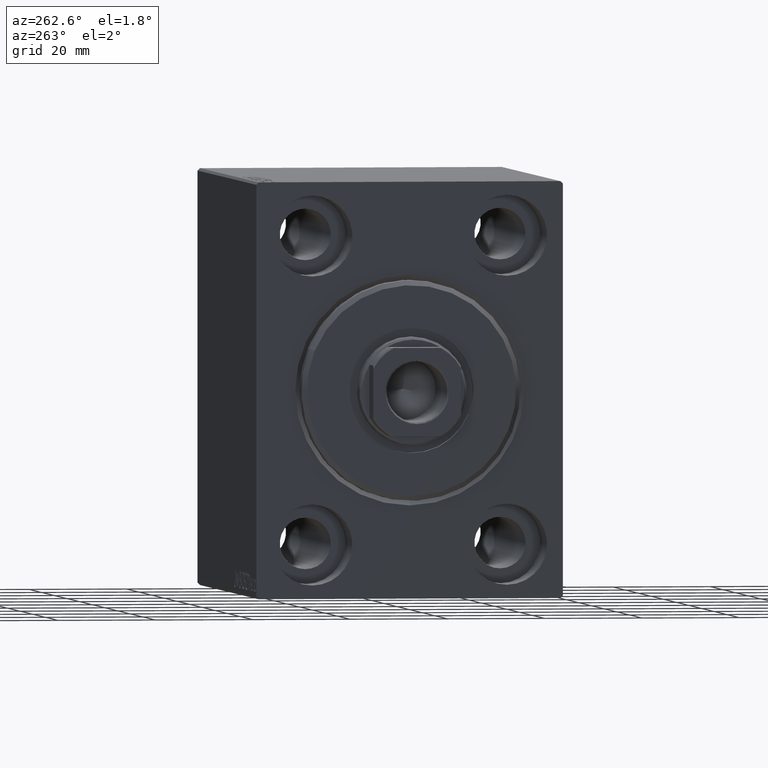
[diagram: clean part render]
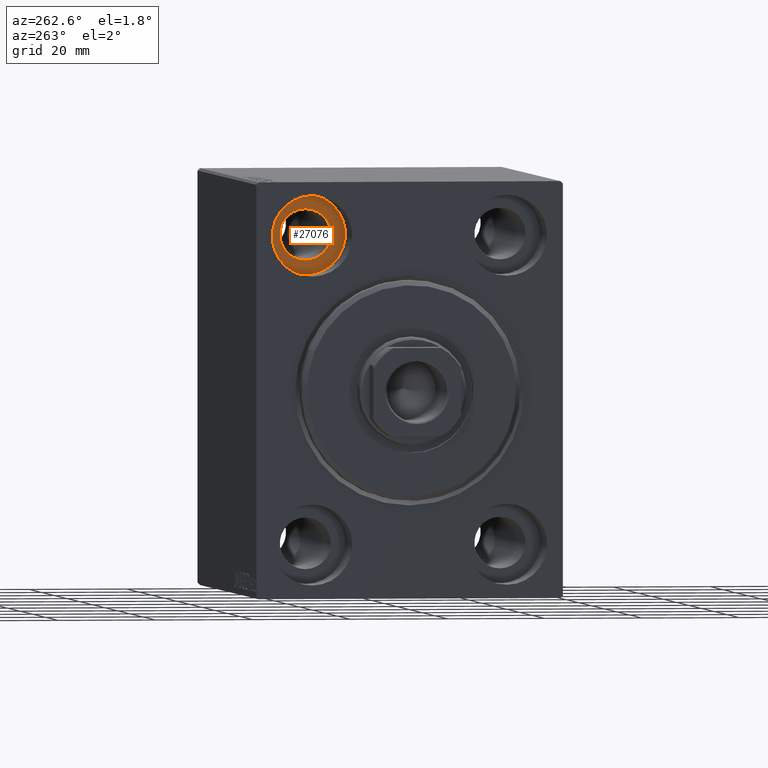
[diagram: same view with one face highlighted and labeled with its STEP entity id]
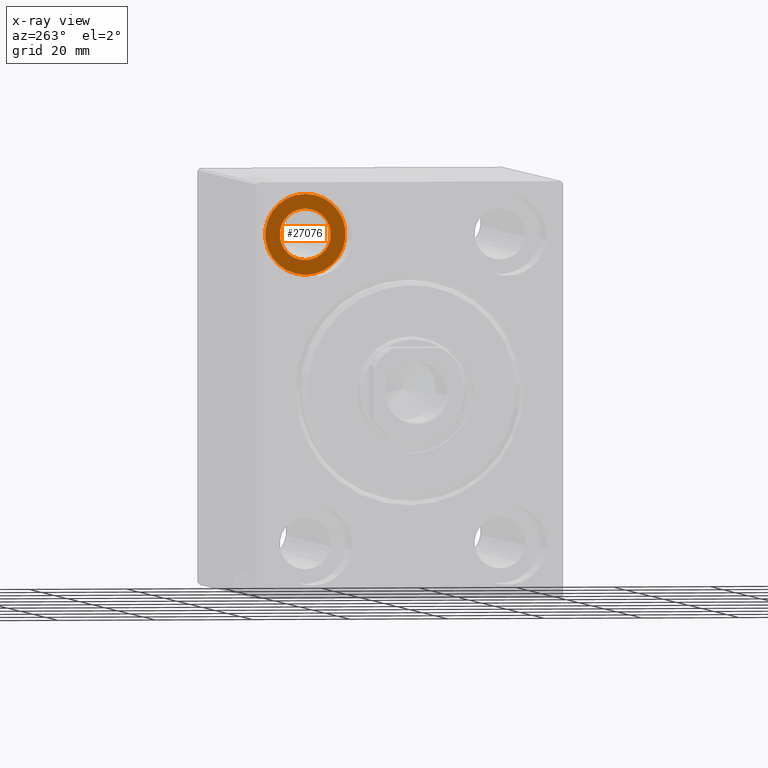
[diagram: x-ray of the same camera — body ghosted, the highlighted face saturated]
A machine part, auxiliary view. The second image highlights one B-rep face of the part: STEP entity #27076.
The next image is the same camera in x-ray: the body ghosted, the highlighted face saturated — about 0% of this face is hidden behind the body in this view.
In plain terms, the highlighted planar face has unit normal (-1, 0, 0).
Its self-contained STEP definition (entity closure, byte-faithful):
#381 = VERTEX_POINT ( 'NONE', #25216 ) ;
#860 = CIRCLE ( 'NONE', #34021, 5.249999999999997335 ) ;
#892 = VERTEX_POINT ( 'NONE', #18255 ) ;
#1297 = VERTEX_POINT ( 'NONE', #40338 ) ;
#2776 = CARTESIAN_POINT ( 'NONE',  ( 11.00000000000000000, 20.00000000000000355, 31.50000000000000000 ) ) ;
#3083 = ORIENTED_EDGE ( 'NONE', *, *, #9266, .F. ) ;
#4389 = PLANE ( 'NONE',  #30589 ) ;
#5520 = EDGE_CURVE ( 'NONE', #381, #1297, #43139, .T. ) ;
#7004 = DIRECTION ( 'NONE',  ( -1.000000000000000000, 0.000000000000000000, 0.000000000000000000 ) ) ;
#7572 = EDGE_CURVE ( 'NONE', #11848, #892, #10022, .T. ) ;
#8796 = DIRECTION ( 'NONE',  ( 0.000000000000000000, 0.000000000000000000, 1.000000000000000000 ) ) ;
#8975 = EDGE_LOOP ( 'NONE', ( #3083, #22003 ) ) ;
#9266 = EDGE_CURVE ( 'NONE', #892, #11848, #860, .T. ) ;
#9656 = CARTESIAN_POINT ( 'NONE',  ( 10.99999999999999645, 20.00000000000000355, 31.50000000000000000 ) ) ;
#9964 = AXIS2_PLACEMENT_3D ( 'NONE', #2776, #19771, #39494 ) ;
#10022 = CIRCLE ( 'NONE', #42505, 5.249999999999997335 ) ;
#11848 = VERTEX_POINT ( 'NONE', #41349 ) ;
#11915 = FACE_BOUND ( 'NONE', #8975, .T. ) ;
#12182 = DIRECTION ( 'NONE',  ( -1.000000000000000000, 0.000000000000000000, 0.000000000000000000 ) ) ;
#16728 = DIRECTION ( 'NONE',  ( 0.000000000000000000, 0.000000000000000000, 1.000000000000000000 ) ) ;
#18255 = CARTESIAN_POINT ( 'NONE',  ( 10.99999999999999645, 20.00000000000000355, 36.75000000000000000 ) ) ;
#19771 = DIRECTION ( 'NONE',  ( -1.000000000000000000, 0.000000000000000000, 0.000000000000000000 ) ) ;
#22003 = ORIENTED_EDGE ( 'NONE', *, *, #7572, .F. ) ;
#22914 = DIRECTION ( 'NONE',  ( -1.000000000000000000, 0.000000000000000000, 0.000000000000000000 ) ) ;
#24242 = CARTESIAN_POINT ( 'NONE',  ( 11.00000000000000000, 20.00000000000000355, 31.50000000000000000 ) ) ;
#24785 = CARTESIAN_POINT ( 'NONE',  ( 10.99999999999999645, 20.00000000000000355, 31.50000000000000000 ) ) ;
#25216 = CARTESIAN_POINT ( 'NONE',  ( 11.00000000000000000, 20.00000000000000355, 39.74999999999999289 ) ) ;
#25353 = EDGE_CURVE ( 'NONE', #1297, #381, #33375, .T. ) ;
#27076 = ADVANCED_FACE ( 'NONE', ( #11915, #41546 ), #4389, .T. ) ;
#28530 = DIRECTION ( 'NONE',  ( 0.000000000000000000, 0.000000000000000000, 1.000000000000000000 ) ) ;
#30589 = AXIS2_PLACEMENT_3D ( 'NONE', #38668, #31583, #42205 ) ;
#31583 = DIRECTION ( 'NONE',  ( -1.000000000000000000, 0.000000000000000000, 0.000000000000000000 ) ) ;
#31729 = EDGE_LOOP ( 'NONE', ( #35113, #35660 ) ) ;
#33375 = CIRCLE ( 'NONE', #34811, 8.249999999999992895 ) ;
#34021 = AXIS2_PLACEMENT_3D ( 'NONE', #24785, #12182, #28530 ) ;
#34811 = AXIS2_PLACEMENT_3D ( 'NONE', #24242, #7004, #16728 ) ;
#35113 = ORIENTED_EDGE ( 'NONE', *, *, #5520, .T. ) ;
#35660 = ORIENTED_EDGE ( 'NONE', *, *, #25353, .T. ) ;
#38668 = CARTESIAN_POINT ( 'NONE',  ( 11.00000000000000000, 0.000000000000000000, 0.000000000000000000 ) ) ;
#39494 = DIRECTION ( 'NONE',  ( 0.000000000000000000, 0.000000000000000000, 1.000000000000000000 ) ) ;
#40338 = CARTESIAN_POINT ( 'NONE',  ( 11.00000000000000000, 20.00000000000000355, 23.25000000000000355 ) ) ;
#41349 = CARTESIAN_POINT ( 'NONE',  ( 10.99999999999999645, 20.00000000000000355, 26.25000000000000355 ) ) ;
#41546 = FACE_OUTER_BOUND ( 'NONE', #31729, .T. ) ;
#42205 = DIRECTION ( 'NONE',  ( 0.000000000000000000, 0.000000000000000000, 1.000000000000000000 ) ) ;
#42505 = AXIS2_PLACEMENT_3D ( 'NONE', #9656, #22914, #8796 ) ;
#43139 = CIRCLE ( 'NONE', #9964, 8.249999999999992895 ) ;